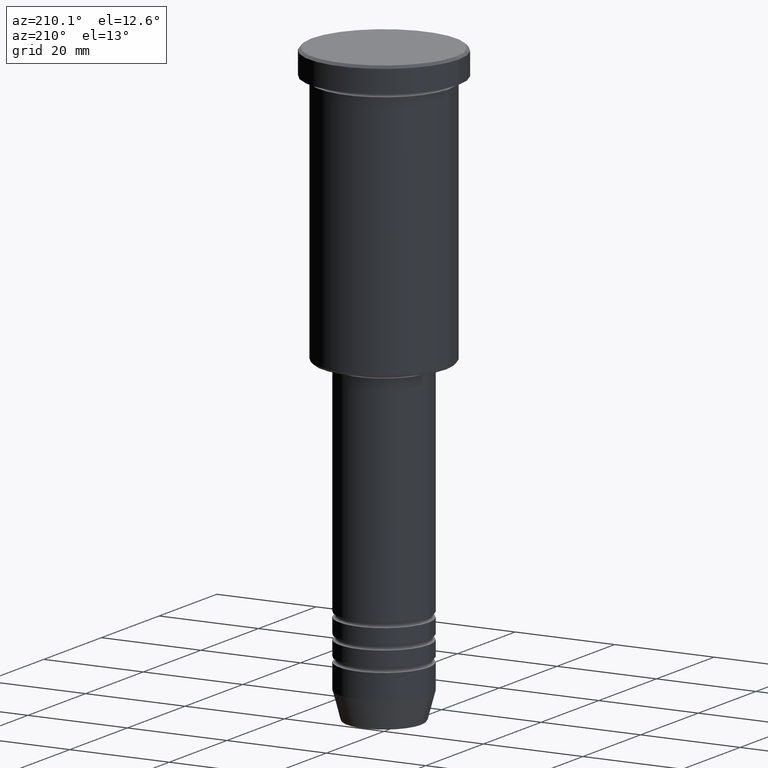
[diagram: clean part render]
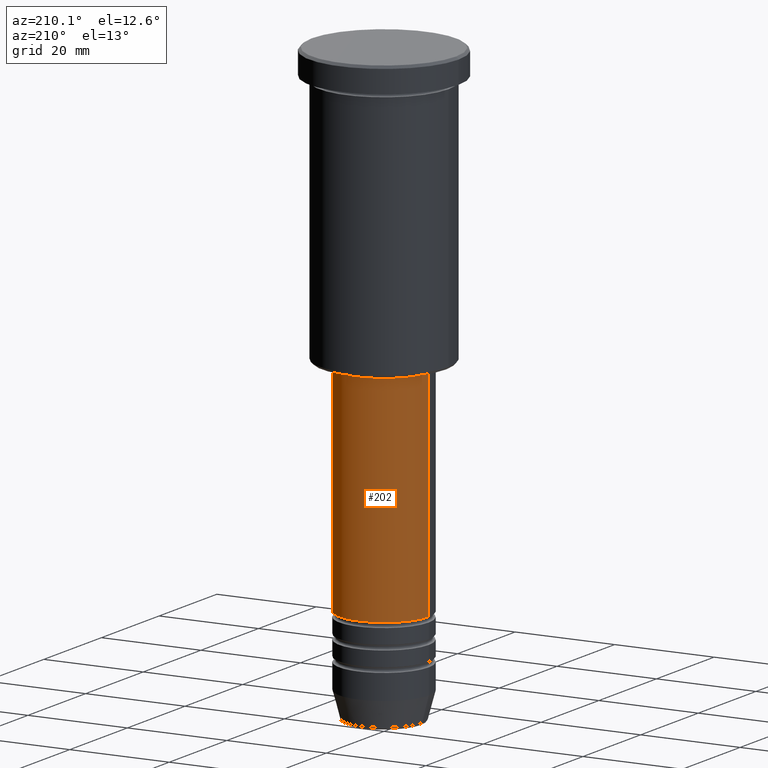
[diagram: same view with one face highlighted and labeled with its STEP entity id]
A machine part, auxiliary view. The second image highlights one B-rep face of the part: STEP entity #202.
In plain terms, the highlighted cylindrical surface (partial cylindrical patch) has radius 9 mm, axis along (-0, -0, 1).
Its self-contained STEP definition (entity closure, byte-faithful):
#29 = VECTOR ( 'NONE', #319, 1000.000000000000000 ) ;
#46 = LINE ( 'NONE', #405, #29 ) ;
#77 = CARTESIAN_POINT ( 'NONE',  ( -8.999999999999998224, 1.102182119232617714E-15, -57.00000000000002842 ) ) ;
#112 = CIRCLE ( 'NONE', #1061, 8.999999999999998224 ) ;
#153 = EDGE_CURVE ( 'NONE', #1092, #1026, #733, .T. ) ;
#163 = AXIS2_PLACEMENT_3D ( 'NONE', #589, #773, #1140 ) ;
#202 = ADVANCED_FACE ( 'NONE', ( #517 ), #870, .T. ) ;
#216 = LINE ( 'NONE', #753, #494 ) ;
#233 = EDGE_CURVE ( 'NONE', #1092, #1104, #46, .T. ) ;
#319 = DIRECTION ( 'NONE',  ( -0.000000000000000000, -0.000000000000000000, 1.000000000000000000 ) ) ;
#349 = CARTESIAN_POINT ( 'NONE',  ( -9.000000000000001776, 1.102182119232617911E-15, -100.4999999999999716 ) ) ;
#405 = CARTESIAN_POINT ( 'NONE',  ( 9.000000000000000000, 0.000000000000000000, 0.000000000000000000 ) ) ;
#438 = EDGE_LOOP ( 'NONE', ( #809, #868, #928, #850 ) ) ;
#494 = VECTOR ( 'NONE', #929, 1000.000000000000000 ) ;
#516 = DIRECTION ( 'NONE',  ( 1.000000000000000000, 0.000000000000000000, 0.000000000000000000 ) ) ;
#517 = FACE_OUTER_BOUND ( 'NONE', #438, .T. ) ;
#534 = CARTESIAN_POINT ( 'NONE',  ( 8.999999999999998224, 0.000000000000000000, -57.00000000000002842 ) ) ;
#540 = EDGE_CURVE ( 'NONE', #1104, #553, #112, .T. ) ;
#553 = VERTEX_POINT ( 'NONE', #77 ) ;
#581 = CARTESIAN_POINT ( 'NONE',  ( 0.000000000000000000, 0.000000000000000000, 0.000000000000000000 ) ) ;
#589 = CARTESIAN_POINT ( 'NONE',  ( 0.000000000000000000, 0.000000000000000000, -100.4999999999999716 ) ) ;
#598 = DIRECTION ( 'NONE',  ( -0.000000000000000000, -0.000000000000000000, 1.000000000000000000 ) ) ;
#710 = CARTESIAN_POINT ( 'NONE',  ( 0.000000000000000000, 0.000000000000000000, -57.00000000000002842 ) ) ;
#733 = CIRCLE ( 'NONE', #163, 9.000000000000001776 ) ;
#753 = CARTESIAN_POINT ( 'NONE',  ( -9.000000000000000000, 1.102182119232617714E-15, 0.000000000000000000 ) ) ;
#773 = DIRECTION ( 'NONE',  ( -0.000000000000000000, -0.000000000000000000, 1.000000000000000000 ) ) ;
#809 = ORIENTED_EDGE ( 'NONE', *, *, #153, .T. ) ;
#835 = EDGE_CURVE ( 'NONE', #1026, #553, #216, .T. ) ;
#844 = AXIS2_PLACEMENT_3D ( 'NONE', #581, #598, #955 ) ;
#850 = ORIENTED_EDGE ( 'NONE', *, *, #233, .F. ) ;
#868 = ORIENTED_EDGE ( 'NONE', *, *, #835, .T. ) ;
#870 = CYLINDRICAL_SURFACE ( 'NONE', #844, 9.000000000000000000 ) ;
#928 = ORIENTED_EDGE ( 'NONE', *, *, #540, .F. ) ;
#929 = DIRECTION ( 'NONE',  ( -0.000000000000000000, -0.000000000000000000, 1.000000000000000000 ) ) ;
#955 = DIRECTION ( 'NONE',  ( 1.000000000000000000, 0.000000000000000000, 0.000000000000000000 ) ) ;
#991 = CARTESIAN_POINT ( 'NONE',  ( 9.000000000000001776, 0.000000000000000000, -100.4999999999999716 ) ) ;
#1026 = VERTEX_POINT ( 'NONE', #349 ) ;
#1061 = AXIS2_PLACEMENT_3D ( 'NONE', #710, #1064, #516 ) ;
#1064 = DIRECTION ( 'NONE',  ( -0.000000000000000000, -0.000000000000000000, 1.000000000000000000 ) ) ;
#1092 = VERTEX_POINT ( 'NONE', #991 ) ;
#1104 = VERTEX_POINT ( 'NONE', #534 ) ;
#1140 = DIRECTION ( 'NONE',  ( 1.000000000000000000, 0.000000000000000000, 0.000000000000000000 ) ) ;